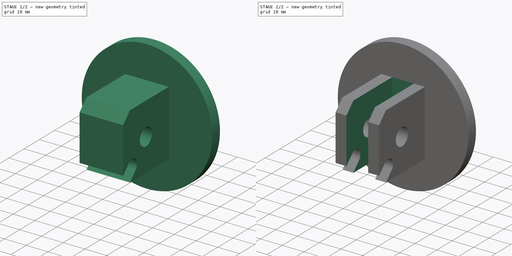
[diagram: build sequence overview — one tinted view per stage of 2, left to right]
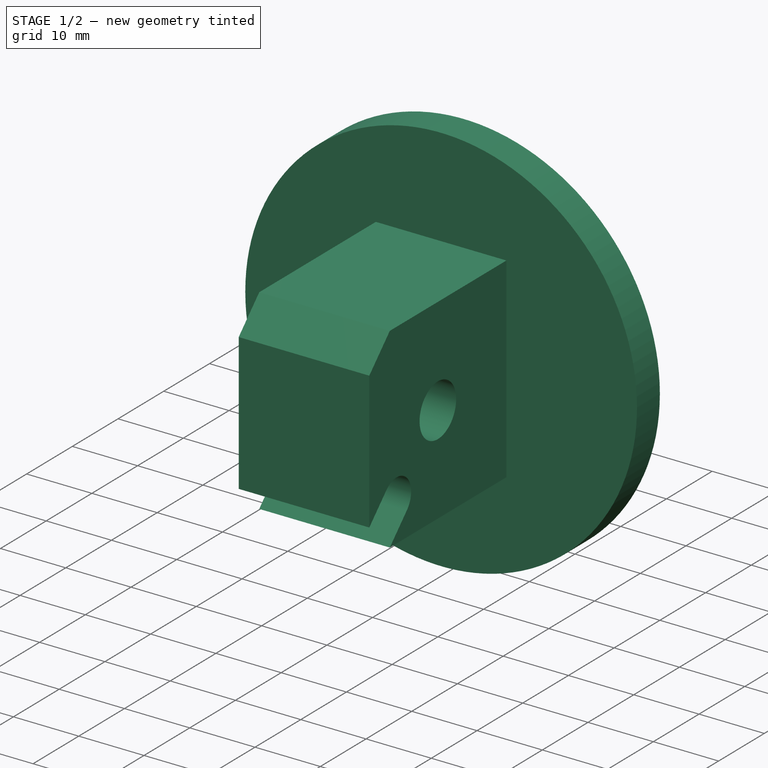
[diagram: stage 1 of 2 — iso view after this stage's code; geometry added in this stage tinted green]
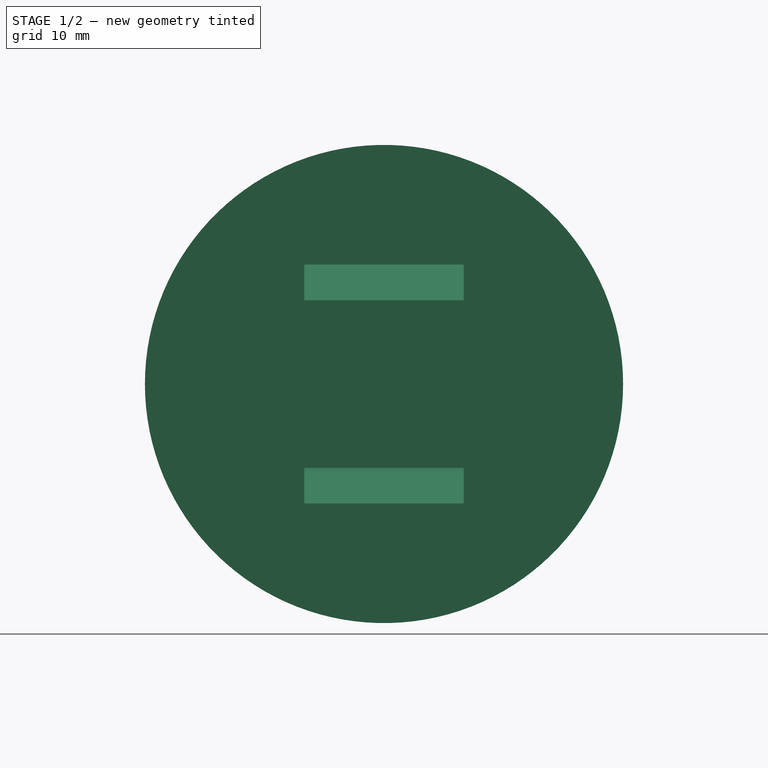
[diagram: stage 1 of 2 — front view after this stage's code; geometry added in this stage tinted green]
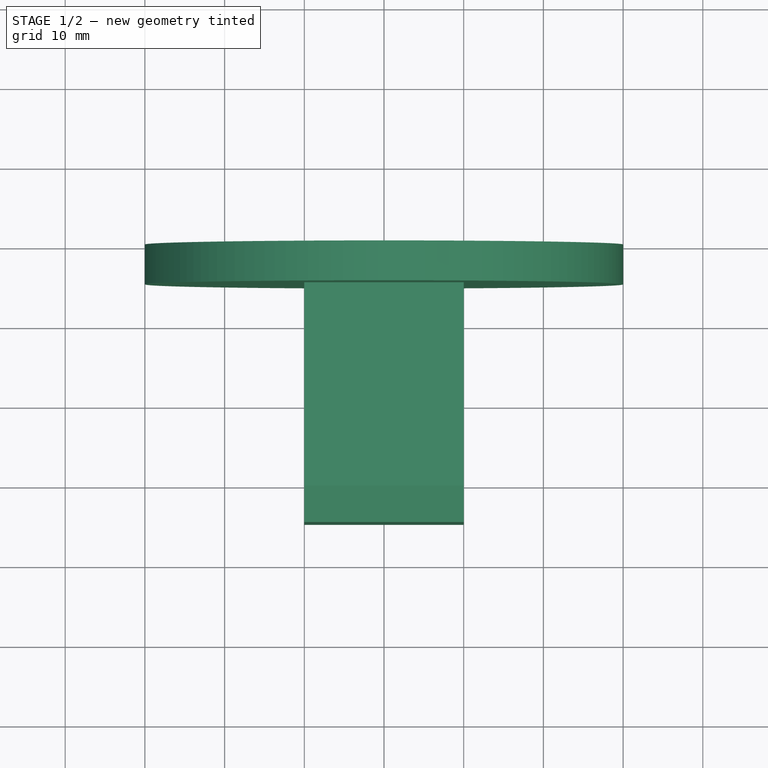
[diagram: stage 1 of 2 — top view after this stage's code; geometry added in this stage tinted green]
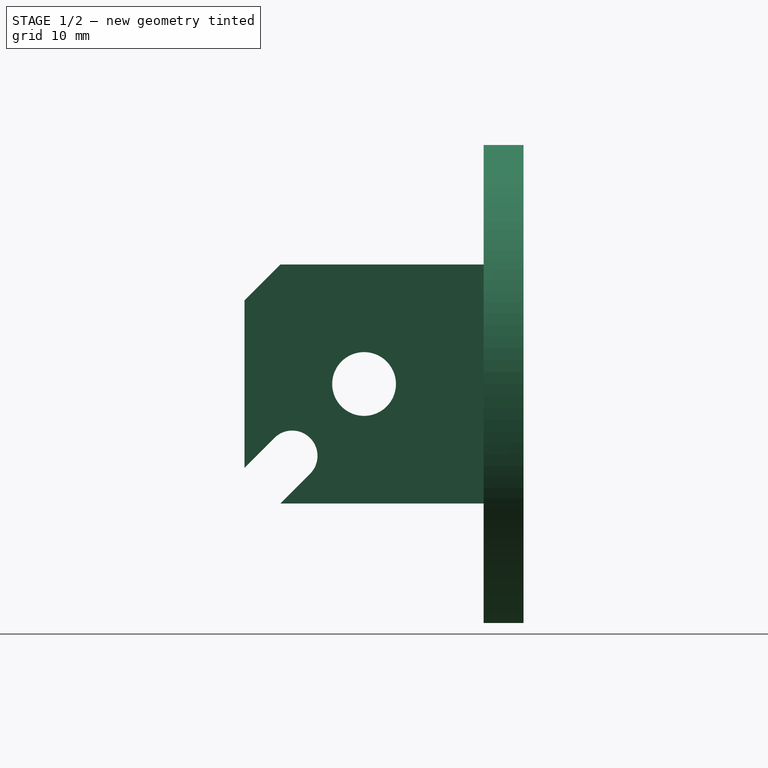
[diagram: stage 1 of 2 — right view after this stage's code; geometry added in this stage tinted green]
FCSTD DOCUMENT  (FreeCAD 0.20R29603 (Git))
Label: Altitude
License: All rights reserved
LicenseURL: http://en.wikipedia.org/wiki/All_rights_reserved
objects: Sketcher::SketchObject×3, PartDesign::Pad×2, PartDesign::Pocket×1, PartDesign::CoordinateSystem×1, PartDesign::Body×1
note: 11 computed .brp shape members not serialized (recipe doc carries the construction recipe); baked Part::Feature solids carry a one-line shape summary decoded from their .brp

FEATURE [Sketcher::SketchObject] Sketch
  FullyConstrained = true
  MapMode = 5
  Placement = pos=(0,0,0) rot=(0.57735,0.57735,0.57735;2.0944rad)
  Support = -> [YZ_Plane]
  sketch-geometry (13):
    g0: Circle CenterX=-20 CenterY=0 CenterZ=0 NormalX=0 NormalY=0 NormalZ=1 AngleXU=0 Radius=4
    g1: ArcOfCircle CenterX=-32.7549 CenterY=-12.7549 CenterZ=0 NormalX=0 NormalY=0 NormalZ=1 AngleXU=0 Radius=3.175 StartAngle=2.35619 EndAngle=5.49779
    g2: ArcOfCircle CenterX=-29.0191 CenterY=-9.0191 CenterZ=0 NormalX=0 NormalY=0 NormalZ=1 AngleXU=0 Radius=3.175 StartAngle=5.49779 EndAngle=8.63938
    g3: LineSegment StartX=-30.5099 StartY=-15 StartZ=0 EndX=-26.774 EndY=-11.2642 EndZ=0
    g4: LineSegment StartX=-31.2642 StartY=-6.77404 StartZ=0 EndX=-35 EndY=-10.5099 EndZ=0
    g5: LineSegment StartX=-20 StartY=0 StartZ=0 EndX=-29.0191 EndY=-9.0191 EndZ=0
    g6: LineSegment StartX=-30.5099 StartY=15 StartZ=0 EndX=-0.1 EndY=15 EndZ=0
    g7: LineSegment StartX=-0.1 StartY=-15 StartZ=0 EndX=-30.5099 EndY=-15 EndZ=0
    g8: LineSegment StartX=-32.7549 StartY=-12.7549 StartZ=0 EndX=-32.7549 EndY=0 EndZ=0
    g9: LineSegment StartX=-0.1 StartY=15 StartZ=0 EndX=-0.1 EndY=-15 EndZ=0
    g10: LineSegment StartX=-35 StartY=-10.5099 StartZ=0 EndX=-35 EndY=10.5099 EndZ=0
    g11: LineSegment StartX=-35 StartY=10.5099 StartZ=0 EndX=-30.5099 EndY=15 EndZ=0
    g12: Circle CenterX=-20 CenterY=0 CenterZ=0 NormalX=0 NormalY=0 NormalZ=1 AngleXU=0 Radius=18.3155
  constraints (33):
    c: Tangent(g1,g3) = -1.5708
    c: Tangent(g3,g2) = -1.5708
    c: Tangent(g2,g4) = -1.5708
    c: Tangent(g4,g1) = -1.5708
    c: Equal(g1,g2)
    c: Diameter(g0) = 8
    c: Diameter(g2) = 6.35
    c: Coincident(g5,g0)
    c: Coincident(g5,g2)
    c: Parallel(g5,g3)
    c: Angle(g5,g-2) = 0.785398
    c: PointOnObject(g0,g-1)
    c: Horizontal(g6)
    c: Horizontal(g7)
    c: Coincident(g8,g1)
    c: PointOnObject(g8,g-1)
    c: Vertical(g8)
    c: Equal(g8,g5)
    c: Coincident(g7,g1)
    c: Coincident(g9,g6)
    c: Coincident(g9,g7)
    c: Symmetric(g7,g6,g-1)
    c: Coincident(g10,g1)
    c: DistanceX(g0,g-1) = 20
    c: DistanceX(g6,g-1) = 0.1
    c: Coincident(g11,g10)
    c: Coincident(g11,g6)
    c: Angle(g11,g6) = 2.35619
    c: Vertical(g10)
    c: Coincident(g12,g0)
    c: PointOnObject(g3,g12)
    c: PointOnObject(g10,g12)
    c: DistanceY(g9,g9) = 30
FEATURE [Sketcher::SketchObject] Sketch001
  FullyConstrained = true
  MapMode = 5
  Placement = pos=(0,0,0) rot=(1,0,0;1.5708rad)
  Support = -> [XZ_Plane]
  sketch-geometry (1):
    g0: Circle CenterX=0 CenterY=0 CenterZ=0 NormalX=0 NormalY=0 NormalZ=1 AngleXU=0 Radius=30
  constraints (2):
    c: Coincident(g0,g-1)
    c: Diameter(g0) = 60
FEATURE [PartDesign::Pad] Pad
  Direction = (0,-1,-2e-16)
  Length = 5
  Length2 = 10
  Placement = pos=(0,0,0) rot=(1,0,0;1.5708rad)
  Profile = -> Sketch001
  ReferenceAxis = -> Sketch001 [N_Axis]
  Type = 0
FEATURE [PartDesign::Pad] Pad001
  BaseFeature = -> Pad
  Direction = (1,-2e-16,3e-16)
  Length = 20
  Length2 = 10
  Midplane = true
  Placement = pos=(0,0,0) rot=(1,0,0;1.5708rad)
  Profile = -> Sketch
  ReferenceAxis = -> Sketch [N_Axis]
  Type = 0
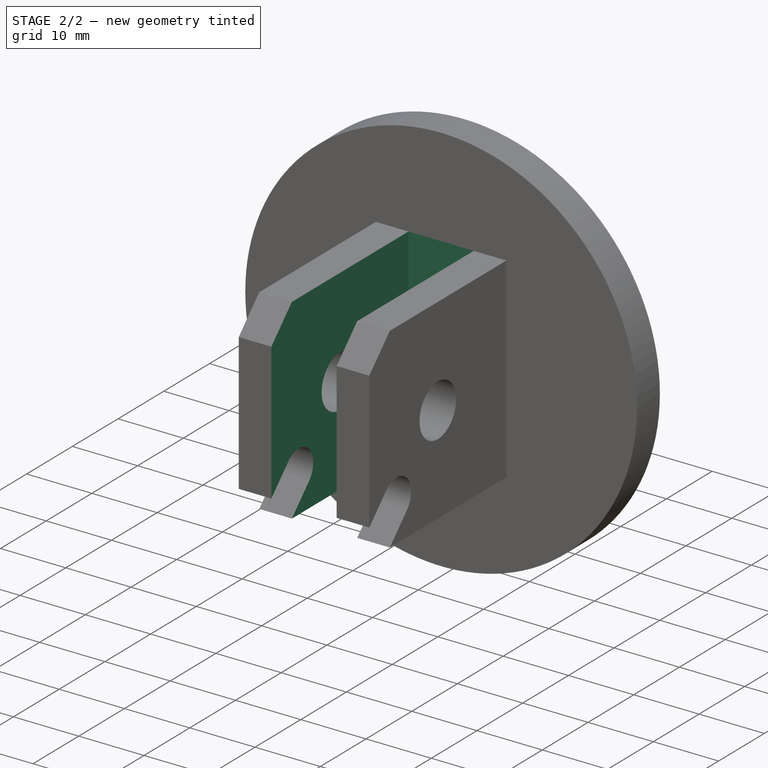
[diagram: stage 2 of 2 — iso view after this stage's code; geometry added in this stage tinted green]
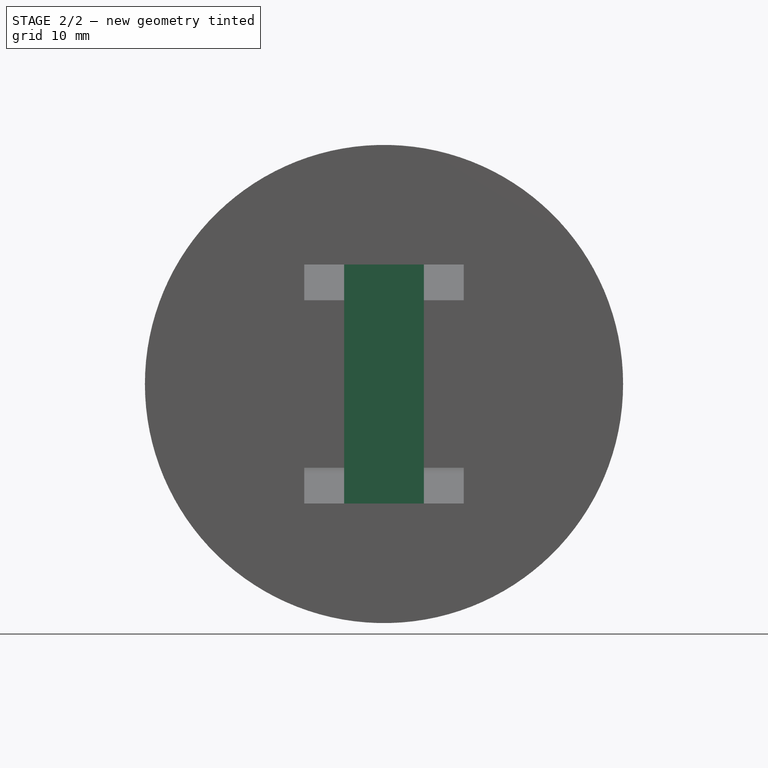
[diagram: stage 2 of 2 — front view after this stage's code; geometry added in this stage tinted green]
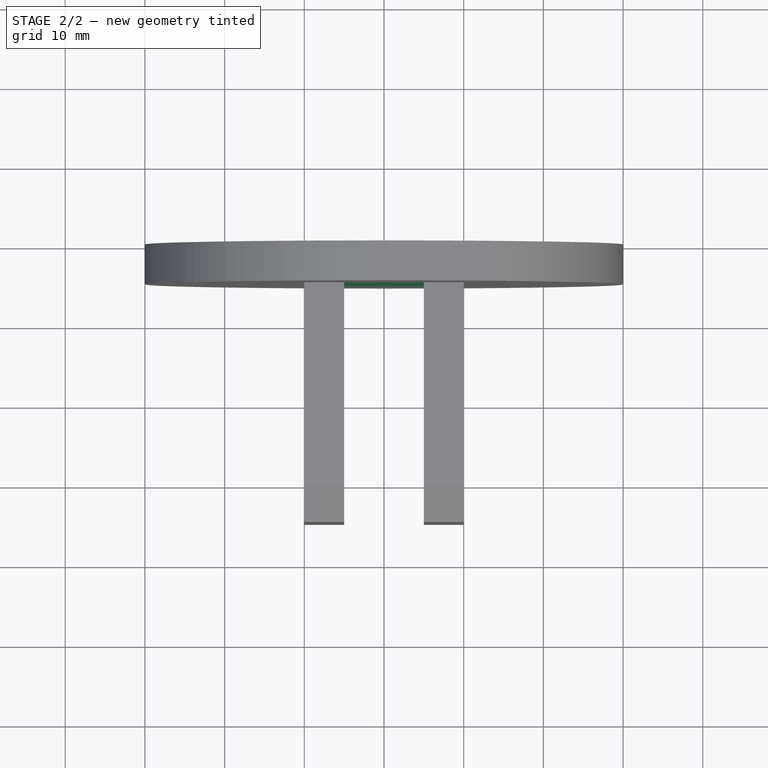
[diagram: stage 2 of 2 — top view after this stage's code; geometry added in this stage tinted green]
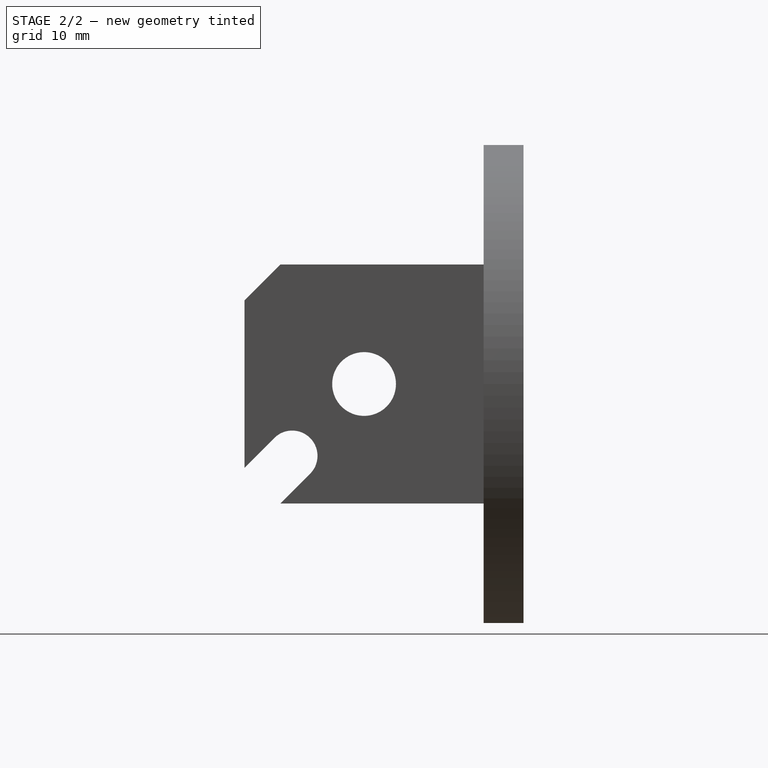
[diagram: stage 2 of 2 — right view after this stage's code; geometry added in this stage tinted green]
FEATURE [Sketcher::SketchObject] Sketch002
  FullyConstrained = true
  MapMode = 5
  Support = -> [XY_Plane]
  sketch-geometry (4):
    g0: LineSegment StartX=-5 StartY=-35 StartZ=0 EndX=5 EndY=-35 EndZ=0
    g1: LineSegment StartX=5 StartY=-35 StartZ=0 EndX=5 EndY=-5 EndZ=0
    g2: LineSegment StartX=5 StartY=-5 StartZ=0 EndX=-5 EndY=-5 EndZ=0
    g3: LineSegment StartX=-5 StartY=-5 StartZ=0 EndX=-5 EndY=-35 EndZ=0
  constraints (11):
    c: Coincident(g0,g1)
    c: Coincident(g1,g2)
    c: Coincident(g2,g3)
    c: Coincident(g3,g0)
    c: Horizontal(g0)
    c: Vertical(g1)
    c: Vertical(g3)
    c: DistanceY(g1,g-1) = 5
    c: Symmetric(g2,g1,g-2)
    c: DistanceY(g3,g3) = 30
    c: DistanceX(g0,g0) = 10
FEATURE [PartDesign::Pocket] Pocket
  BaseFeature = -> Pad001
  Direction = (0,0,-1)
  Length = 30
  Length2 = 5
  Midplane = true
  Placement = pos=(0,0,0) rot=(1,0,0;1.5708rad)
  Profile = -> Sketch002
  ReferenceAxis = -> Sketch002 [N_Axis]
  Type = 0
FEATURE [PartDesign::CoordinateSystem] Local_CS
  AttacherType = Attacher::AttachEngine3D
  MapMode = 45
  Placement = pos=(6e-16,-20,1.26e-14) rot=(0.57735,0.57735,0.57735;4.18879rad)
  Support = -> [Pocket]
FEATURE [PartDesign::Body] Body  label="Altitude"
  Group = -> [Sketch,Sketch001,Pad,Pad001,Sketch002,Pocket,Local_CS]
  Origin = -> Origin
  Tip = -> Pocket
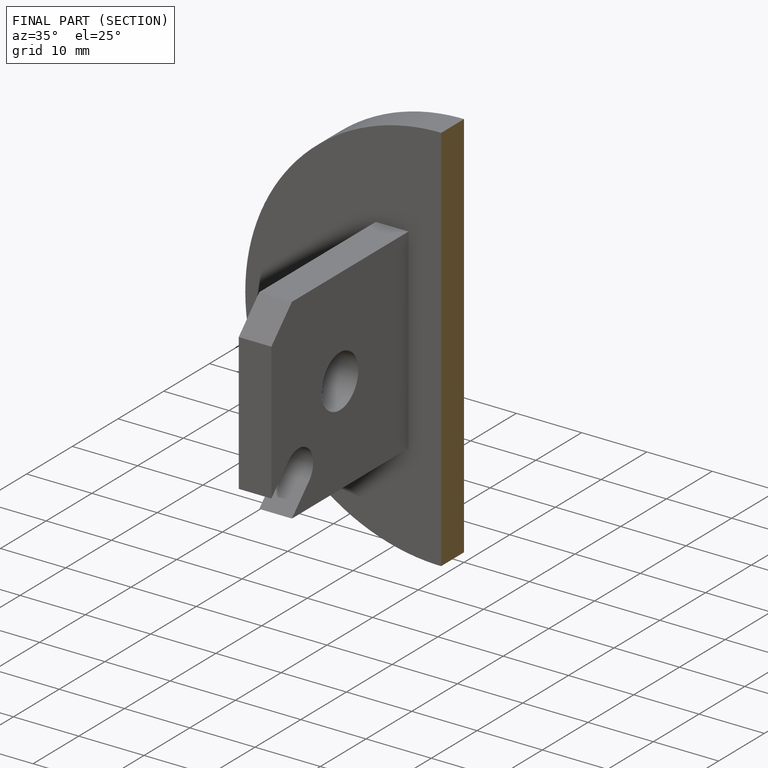
[diagram: finished part — half-section view (interior)]
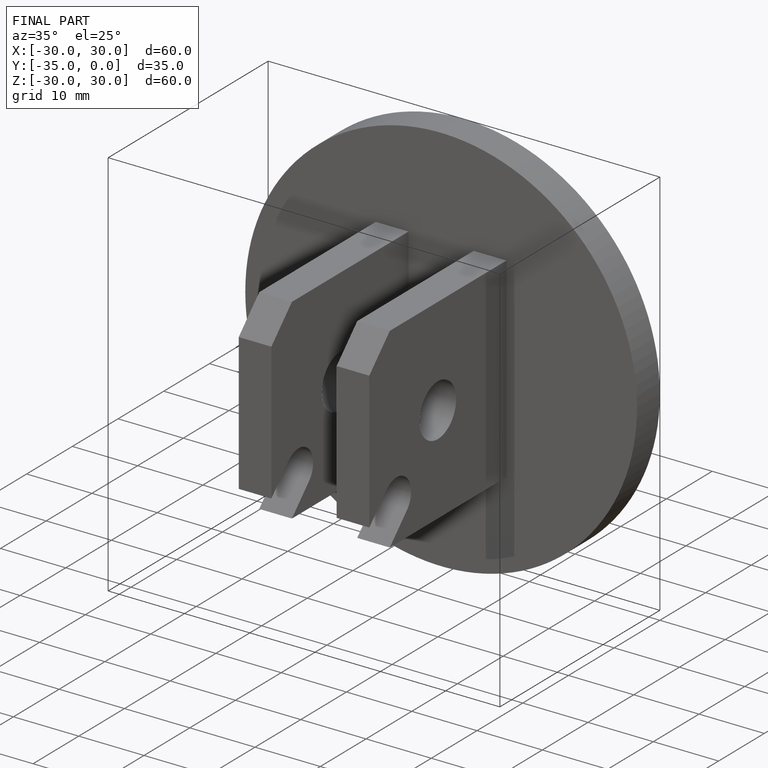
[diagram: finished part — iso view with bounding-box wireframe]
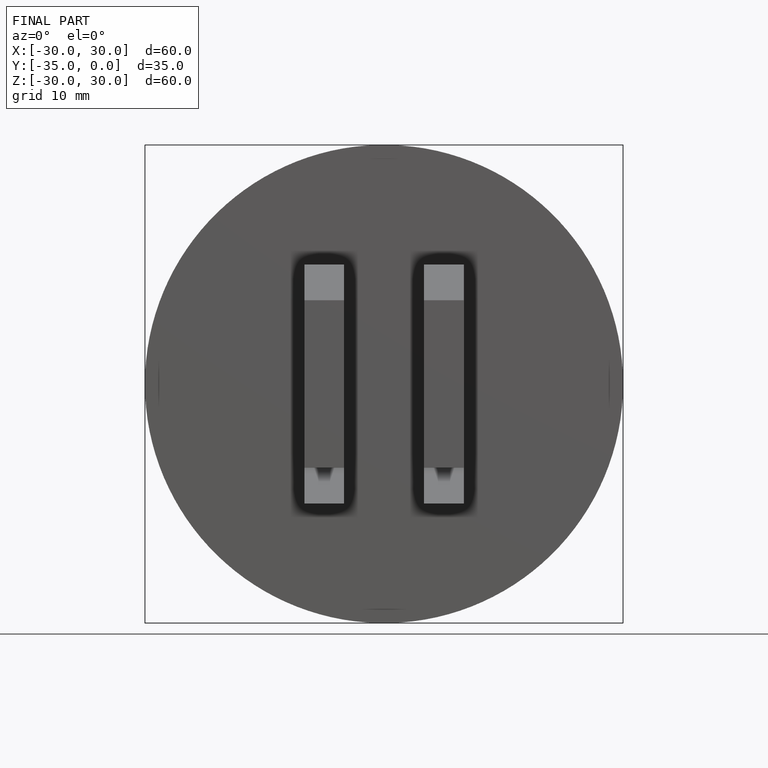
[diagram: finished part — front view with bounding-box wireframe]
